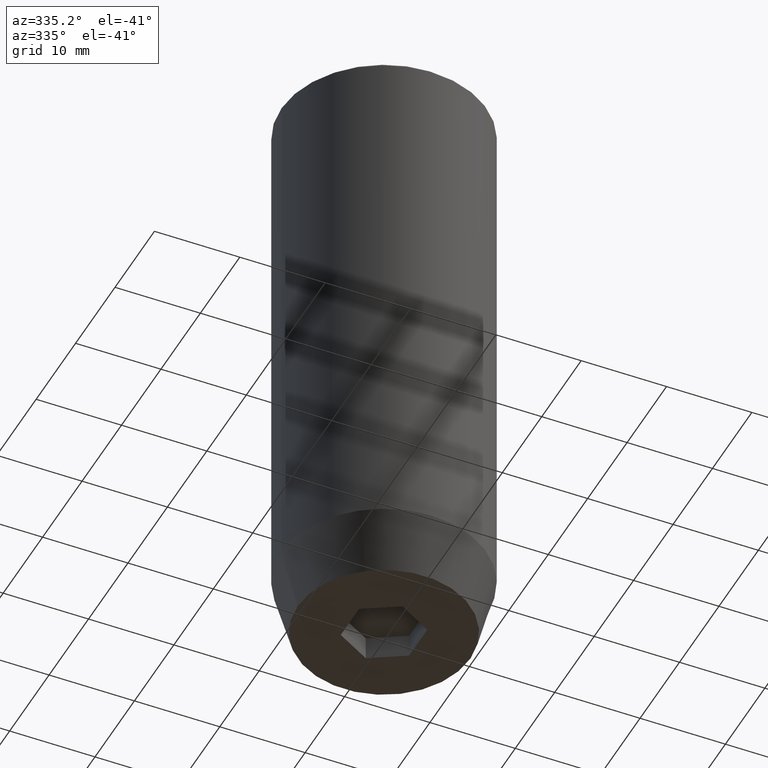
[diagram: clean part render]
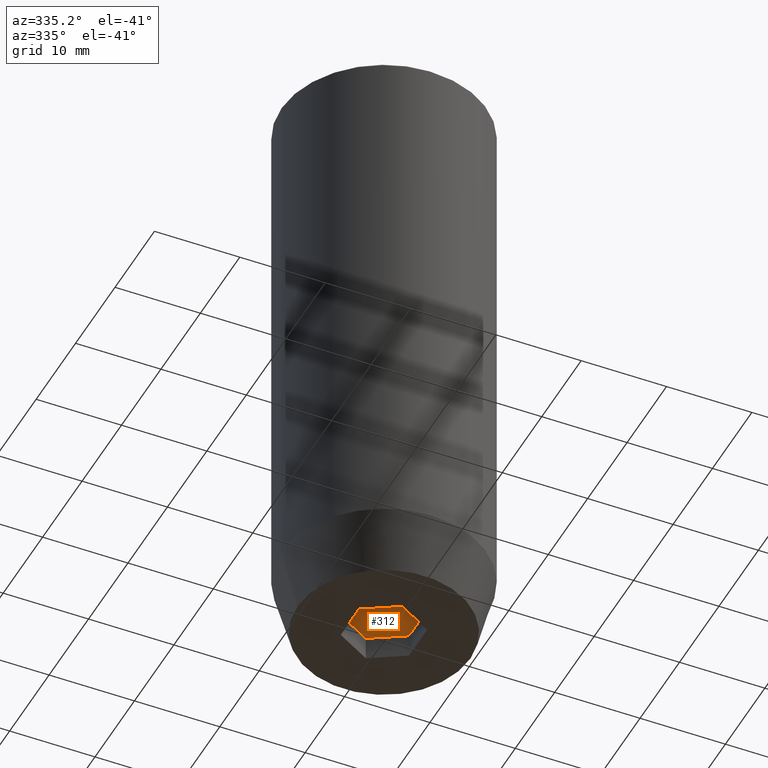
[diagram: same view with one face highlighted and labeled with its STEP entity id]
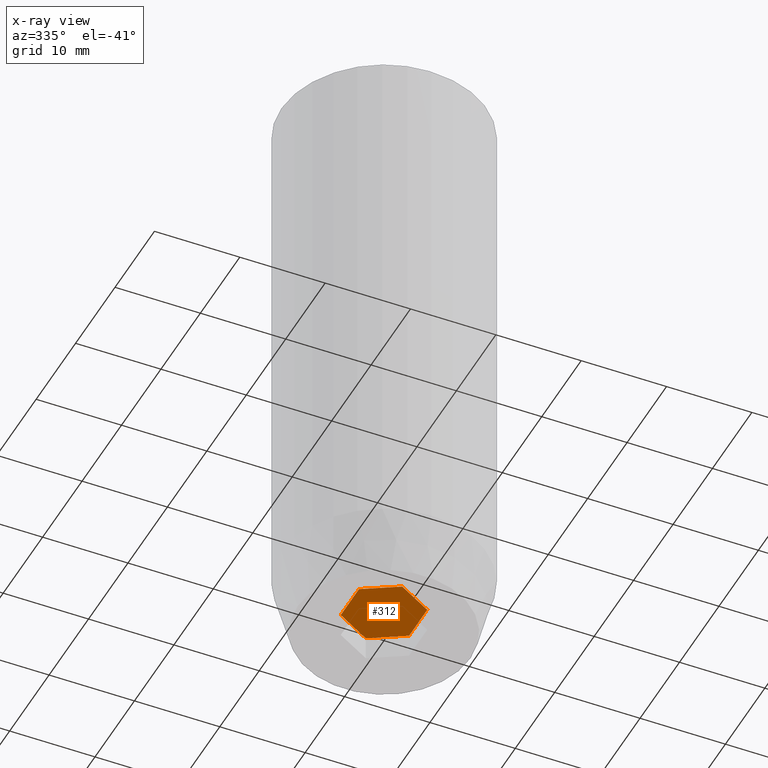
[diagram: x-ray of the same camera — body ghosted, the highlighted face saturated]
A machine part, auxiliary view. The second image highlights one B-rep face of the part: STEP entity #312.
The next image is the same camera in x-ray: the body ghosted, the highlighted face saturated — about 0% of this face is hidden behind the body in this view.
In plain terms, the highlighted planar face has unit normal (0, 0, -1).
Its self-contained STEP definition (entity closure, byte-faithful):
#21 = CARTESIAN_POINT ( 'NONE',  ( 4.000000000000000000, 2.309401076758503368, -67.20000000000000284 ) ) ;
#28 = ORIENTED_EDGE ( 'NONE', *, *, #261, .T. ) ;
#29 = CARTESIAN_POINT ( 'NONE',  ( -4.000000000000000000, 0.000000000000000000, -67.20000000000000284 ) ) ;
#41 = VECTOR ( 'NONE', #420, 1000.000000000000114 ) ;
#74 = LINE ( 'NONE', #164, #179 ) ;
#81 = DIRECTION ( 'NONE',  ( 0.8660254037844385966, -0.5000000000000001110, 0.000000000000000000 ) ) ;
#91 = EDGE_CURVE ( 'NONE', #125, #373, #74, .T. ) ;
#98 = DIRECTION ( 'NONE',  ( 0.000000000000000000, -1.000000000000000000, 0.000000000000000000 ) ) ;
#109 = VERTEX_POINT ( 'NONE', #453 ) ;
#125 = VERTEX_POINT ( 'NONE', #271 ) ;
#133 = LINE ( 'NONE', #328, #134 ) ;
#134 = VECTOR ( 'NONE', #98, 1000.000000000000000 ) ;
#141 = ORIENTED_EDGE ( 'NONE', *, *, #491, .T. ) ;
#153 = LINE ( 'NONE', #29, #223 ) ;
#164 = CARTESIAN_POINT ( 'NONE',  ( 2.000000000000000444, 3.464101615137754386, -67.20000000000000284 ) ) ;
#179 = VECTOR ( 'NONE', #81, 1000.000000000000000 ) ;
#180 = DIRECTION ( 'NONE',  ( -0.8660254037844384856, -0.5000000000000002220, 0.000000000000000000 ) ) ;
#195 = VERTEX_POINT ( 'NONE', #320 ) ;
#197 = DIRECTION ( 'NONE',  ( 0.8660254037844387076, 0.5000000000000001110, 0.000000000000000000 ) ) ;
#210 = ORIENTED_EDGE ( 'NONE', *, *, #289, .T. ) ;
#221 = CARTESIAN_POINT ( 'NONE',  ( 4.336808689942017736E-16, -4.618802153517006737, -67.20000000000000284 ) ) ;
#223 = VECTOR ( 'NONE', #428, 1000.000000000000000 ) ;
#228 = DIRECTION ( 'NONE',  ( -1.000000000000000000, 0.000000000000000000, -0.000000000000000000 ) ) ;
#241 = VERTEX_POINT ( 'NONE', #221 ) ;
#261 = EDGE_CURVE ( 'NONE', #241, #109, #376, .T. ) ;
#271 = CARTESIAN_POINT ( 'NONE',  ( 0.000000000000000000, 4.618802153517006737, -67.20000000000000284 ) ) ;
#272 = EDGE_CURVE ( 'NONE', #373, #286, #133, .T. ) ;
#274 = DIRECTION ( 'NONE',  ( 0.000000000000000000, 0.000000000000000000, -1.000000000000000000 ) ) ;
#286 = VERTEX_POINT ( 'NONE', #369 ) ;
#288 = EDGE_LOOP ( 'NONE', ( #379, #385, #332, #210, #28, #141 ) ) ;
#289 = EDGE_CURVE ( 'NONE', #286, #241, #518, .T. ) ;
#292 = AXIS2_PLACEMENT_3D ( 'NONE', #408, #274, #228 ) ;
#296 = LINE ( 'NONE', #487, #404 ) ;
#312 = ADVANCED_FACE ( 'NONE', ( #374 ), #523, .T. ) ;
#320 = CARTESIAN_POINT ( 'NONE',  ( -4.000000000000000000, 2.309401076758503368, -67.20000000000000284 ) ) ;
#328 = CARTESIAN_POINT ( 'NONE',  ( 4.000000000000000000, 0.000000000000000000, -67.20000000000000284 ) ) ;
#332 = ORIENTED_EDGE ( 'NONE', *, *, #272, .T. ) ;
#369 = CARTESIAN_POINT ( 'NONE',  ( 4.000000000000000000, -2.309401076758502480, -67.20000000000000284 ) ) ;
#373 = VERTEX_POINT ( 'NONE', #21 ) ;
#374 = FACE_OUTER_BOUND ( 'NONE', #288, .T. ) ;
#376 = LINE ( 'NONE', #516, #41 ) ;
#379 = ORIENTED_EDGE ( 'NONE', *, *, #469, .T. ) ;
#385 = ORIENTED_EDGE ( 'NONE', *, *, #91, .T. ) ;
#404 = VECTOR ( 'NONE', #197, 999.9999999999998863 ) ;
#408 = CARTESIAN_POINT ( 'NONE',  ( 0.000000000000000000, 0.000000000000000000, -67.20000000000000284 ) ) ;
#420 = DIRECTION ( 'NONE',  ( -0.8660254037844384856, 0.5000000000000002220, 0.000000000000000000 ) ) ;
#428 = DIRECTION ( 'NONE',  ( 0.000000000000000000, 1.000000000000000000, 0.000000000000000000 ) ) ;
#453 = CARTESIAN_POINT ( 'NONE',  ( -4.000000000000000000, -2.309401076758503368, -67.20000000000000284 ) ) ;
#467 = CARTESIAN_POINT ( 'NONE',  ( 2.000000000000000888, -3.464101615137754386, -67.20000000000000284 ) ) ;
#469 = EDGE_CURVE ( 'NONE', #195, #125, #296, .T. ) ;
#487 = CARTESIAN_POINT ( 'NONE',  ( -2.000000000000000000, 3.464101615137754830, -67.20000000000000284 ) ) ;
#491 = EDGE_CURVE ( 'NONE', #109, #195, #153, .T. ) ;
#516 = CARTESIAN_POINT ( 'NONE',  ( -2.000000000000000888, -3.464101615137754386, -67.20000000000000284 ) ) ;
#518 = LINE ( 'NONE', #467, #571 ) ;
#523 = PLANE ( 'NONE',  #292 ) ;
#571 = VECTOR ( 'NONE', #180, 1000.000000000000114 ) ;